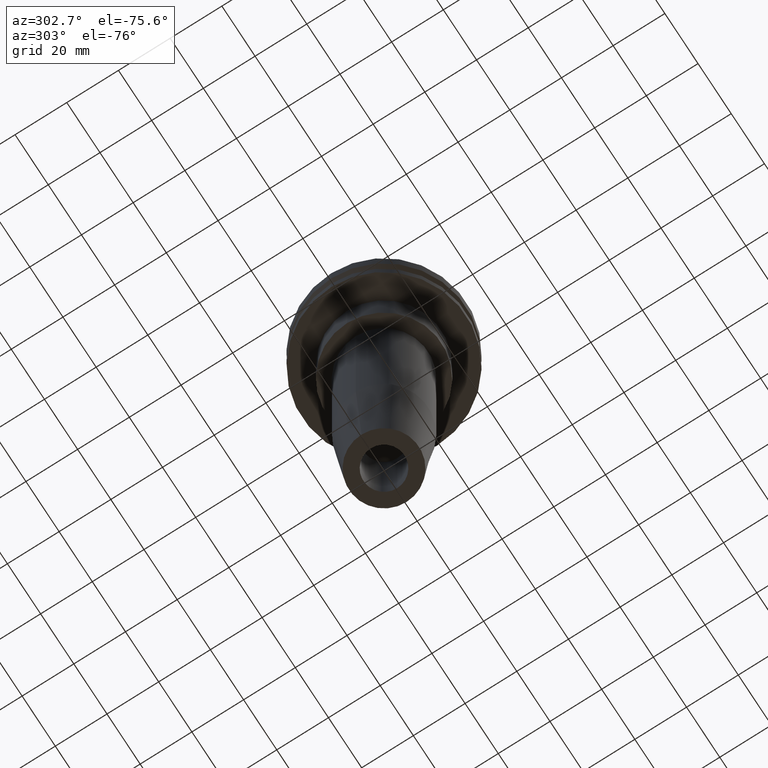
[diagram: clean part render]
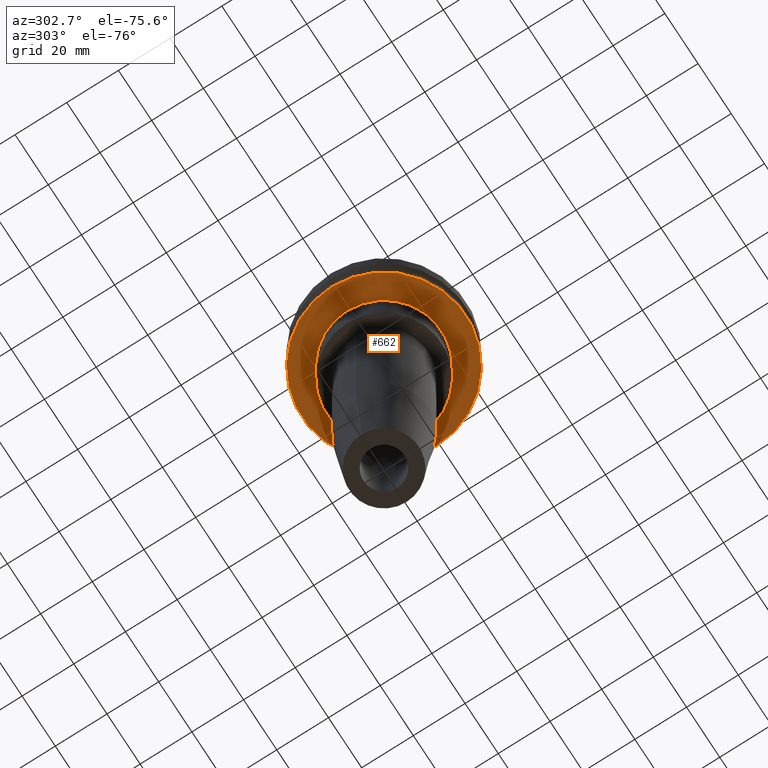
[diagram: same view with one face highlighted and labeled with its STEP entity id]
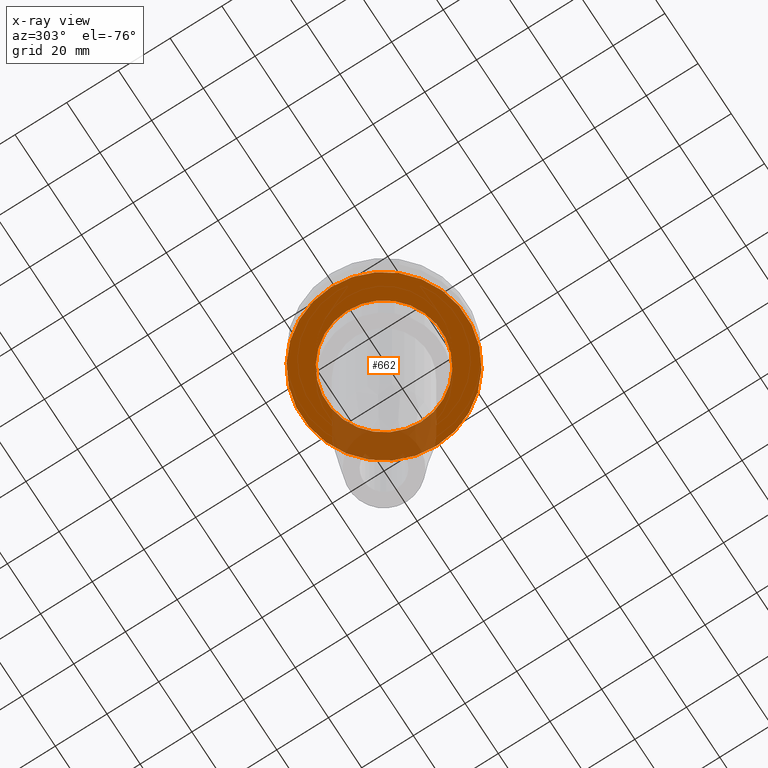
[diagram: x-ray of the same camera — body ghosted, the highlighted face saturated]
A machine part, auxiliary view. The second image highlights one B-rep face of the part: STEP entity #662.
The next image is the same camera in x-ray: the body ghosted, the highlighted face saturated — about 22% of this face is hidden behind the body in this view.
In plain terms, the highlighted planar face has unit normal (0, -0, 1).
Its self-contained STEP definition (entity closure, byte-faithful):
#12 = CIRCLE ( 'NONE', #752, 31.74999999999999289 ) ;
#60 = EDGE_CURVE ( 'NONE', #61, #790, #620, .T. ) ;
#61 = VERTEX_POINT ( 'NONE', #556 ) ;
#85 = VERTEX_POINT ( 'NONE', #267 ) ;
#144 = DIRECTION ( 'NONE',  ( -0.000000000000000000, -0.000000000000000000, 1.000000000000000000 ) ) ;
#186 = ORIENTED_EDGE ( 'NONE', *, *, #292, .T. ) ;
#212 = CARTESIAN_POINT ( 'NONE',  ( 0.000000000000000000, 0.000000000000000000, -19.04999999999999716 ) ) ;
#267 = CARTESIAN_POINT ( 'NONE',  ( -31.74999999999999289, 3.888253587292845687E-15, -19.04999999999999716 ) ) ;
#277 = ORIENTED_EDGE ( 'NONE', *, *, #60, .T. ) ;
#281 = CARTESIAN_POINT ( 'NONE',  ( -22.22500000000000142, 2.721777511104992849E-15, -19.04999999999999716 ) ) ;
#282 = DIRECTION ( 'NONE',  ( 1.000000000000000000, 0.000000000000000000, 0.000000000000000000 ) ) ;
#290 = DIRECTION ( 'NONE',  ( 1.000000000000000000, 0.000000000000000000, 0.000000000000000000 ) ) ;
#292 = EDGE_CURVE ( 'NONE', #790, #61, #679, .T. ) ;
#303 = AXIS2_PLACEMENT_3D ( 'NONE', #590, #327, #701 ) ;
#310 = AXIS2_PLACEMENT_3D ( 'NONE', #687, #358, #290 ) ;
#312 = PLANE ( 'NONE',  #643 ) ;
#316 = DIRECTION ( 'NONE',  ( 0.000000000000000000, -0.000000000000000000, 1.000000000000000000 ) ) ;
#324 = ORIENTED_EDGE ( 'NONE', *, *, #753, .F. ) ;
#327 = DIRECTION ( 'NONE',  ( -0.000000000000000000, -0.000000000000000000, 1.000000000000000000 ) ) ;
#358 = DIRECTION ( 'NONE',  ( -0.000000000000000000, -0.000000000000000000, 1.000000000000000000 ) ) ;
#375 = FACE_BOUND ( 'NONE', #811, .T. ) ;
#392 = ORIENTED_EDGE ( 'NONE', *, *, #845, .F. ) ;
#414 = CARTESIAN_POINT ( 'NONE',  ( 0.000000000000000000, 0.000000000000000000, -19.04999999999999716 ) ) ;
#500 = CIRCLE ( 'NONE', #310, 31.74999999999999289 ) ;
#551 = CARTESIAN_POINT ( 'NONE',  ( 31.74999999999999289, 0.000000000000000000, -19.04999999999999716 ) ) ;
#556 = CARTESIAN_POINT ( 'NONE',  ( 22.22500000000000142, 0.000000000000000000, -19.04999999999999716 ) ) ;
#590 = CARTESIAN_POINT ( 'NONE',  ( 0.000000000000000000, 0.000000000000000000, -19.04999999999999716 ) ) ;
#597 = DIRECTION ( 'NONE',  ( 1.000000000000000000, 0.000000000000000000, 0.000000000000000000 ) ) ;
#620 = CIRCLE ( 'NONE', #810, 22.22500000000000142 ) ;
#643 = AXIS2_PLACEMENT_3D ( 'NONE', #717, #316, #843 ) ;
#662 = ADVANCED_FACE ( 'NONE', ( #785, #375 ), #312, .F. ) ;
#668 = DIRECTION ( 'NONE',  ( -0.000000000000000000, -0.000000000000000000, 1.000000000000000000 ) ) ;
#679 = CIRCLE ( 'NONE', #303, 22.22500000000000142 ) ;
#687 = CARTESIAN_POINT ( 'NONE',  ( 0.000000000000000000, 0.000000000000000000, -19.04999999999999716 ) ) ;
#701 = DIRECTION ( 'NONE',  ( 1.000000000000000000, 0.000000000000000000, 0.000000000000000000 ) ) ;
#717 = CARTESIAN_POINT ( 'NONE',  ( 0.000000000000000000, 31.74999999999999289, -19.04999999999999716 ) ) ;
#752 = AXIS2_PLACEMENT_3D ( 'NONE', #414, #144, #597 ) ;
#753 = EDGE_CURVE ( 'NONE', #796, #85, #12, .T. ) ;
#785 = FACE_OUTER_BOUND ( 'NONE', #849, .T. ) ;
#790 = VERTEX_POINT ( 'NONE', #281 ) ;
#796 = VERTEX_POINT ( 'NONE', #551 ) ;
#810 = AXIS2_PLACEMENT_3D ( 'NONE', #212, #668, #282 ) ;
#811 = EDGE_LOOP ( 'NONE', ( #277, #186 ) ) ;
#843 = DIRECTION ( 'NONE',  ( 1.000000000000000000, 0.000000000000000000, 0.000000000000000000 ) ) ;
#845 = EDGE_CURVE ( 'NONE', #85, #796, #500, .T. ) ;
#849 = EDGE_LOOP ( 'NONE', ( #324, #392 ) ) ;